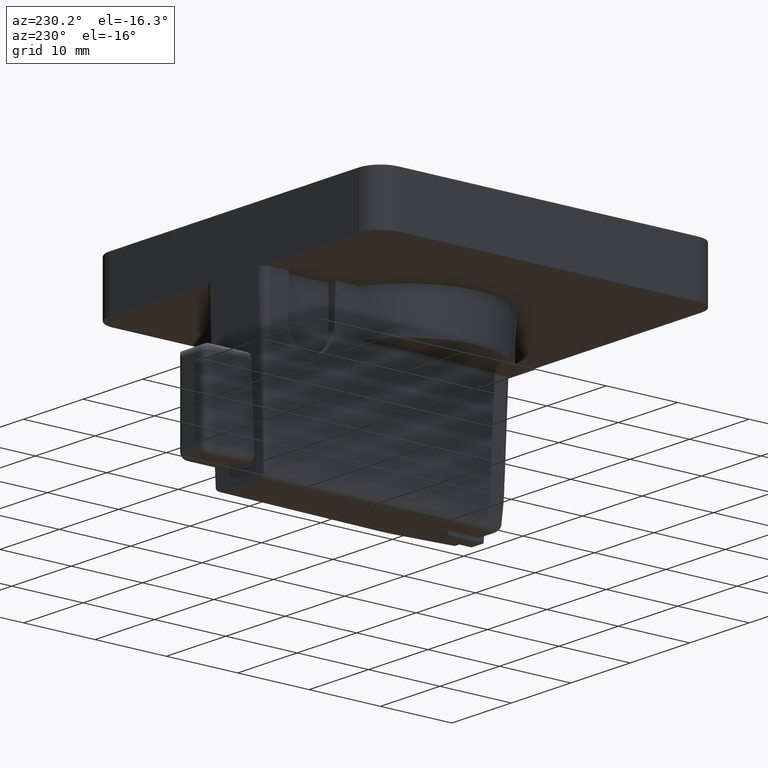
[diagram: clean part render]
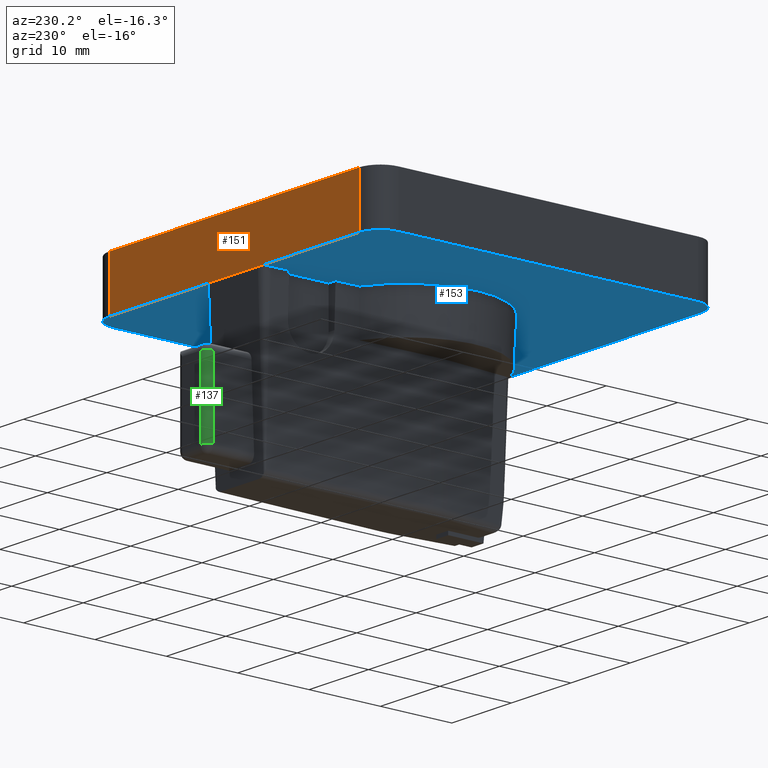
[diagram: same view with three faces highlighted in distinct colors, each labeled with its STEP entity id]
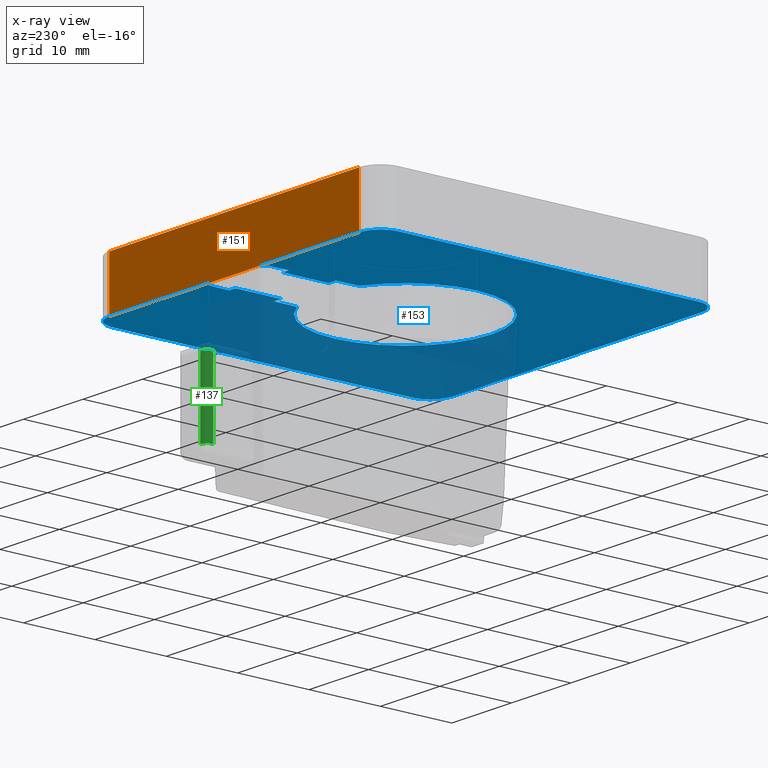
[diagram: x-ray of the same camera — body ghosted, the three highlighted faces saturated]
A machine part, auxiliary view with three faces highlighted in distinct colors.
The next image is the same camera in x-ray (body ghosted, the three faces saturated) — at least one of them is partly hidden behind the body in this view.
Their STEP definitions:

[orange] entity #151 — the highlighted planar face has unit normal (0, 1, 0).
#80=PLANE('',#1266);
#151=ADVANCED_FACE('',(#236),#80,.T.);
#236=FACE_OUTER_BOUND('',#300,.T.);
#300=EDGE_LOOP('',(#641,#642,#643,#644,#645,#646));
#641=ORIENTED_EDGE('',*,*,#952,.T.);
#642=ORIENTED_EDGE('',*,*,#953,.T.);
#643=ORIENTED_EDGE('',*,*,#954,.F.);
#644=ORIENTED_EDGE('',*,*,#885,.T.);
#645=ORIENTED_EDGE('',*,*,#955,.F.);
#646=ORIENTED_EDGE('',*,*,#956,.T.);
#753=VERTEX_POINT('',#1812);
#762=VERTEX_POINT('',#1832);
#796=VERTEX_POINT('',#2021);
#797=VERTEX_POINT('',#2022);
#798=VERTEX_POINT('',#2024);
#799=VERTEX_POINT('',#2027);
#885=EDGE_CURVE('',#753,#762,#1013,.T.);
#952=EDGE_CURVE('',#796,#797,#1060,.T.);
#953=EDGE_CURVE('',#797,#798,#1061,.T.);
#954=EDGE_CURVE('',#753,#798,#1062,.T.);
#955=EDGE_CURVE('',#799,#762,#1063,.T.);
#956=EDGE_CURVE('',#799,#796,#1064,.T.);
#1013=LINE('',#1833,#1111);
#1060=LINE('',#2020,#1158);
#1061=LINE('',#2023,#1159);
#1062=LINE('',#2025,#1160);
#1063=LINE('',#2026,#1161);
#1064=LINE('',#2028,#1162);
#1111=VECTOR('',#1425,1.);
#1158=VECTOR('',#1584,1.);
#1159=VECTOR('',#1585,1.);
#1160=VECTOR('',#1586,1.);
#1161=VECTOR('',#1587,1.);
#1162=VECTOR('',#1588,1.);
#1266=AXIS2_PLACEMENT_3D('',#2029,#1589,#1590);
#1425=DIRECTION('',(-1.,0.,0.));
#1584=DIRECTION('',(1.,0.,0.));
#1585=DIRECTION('',(0.,0.,-1.));
#1586=DIRECTION('',(1.,0.,0.));
#1587=DIRECTION('',(1.,0.,0.));
#1588=DIRECTION('',(0.,0.,1.));
#1589=DIRECTION('',(0.,1.,0.));
#1590=DIRECTION('',(0.,0.,1.));
#1812=CARTESIAN_POINT('',(-157.024008586284,-217.,0.));
#1832=CARTESIAN_POINT('',(-164.975991413717,-217.,0.));
#1833=CARTESIAN_POINT('',(-152.000000000001,-217.,-3.41060513164848E-013));
#2020=CARTESIAN_POINT('',(-185.,-217.,7.3));
#2021=CARTESIAN_POINT('',(-182.,-217.,7.3));
#2022=CARTESIAN_POINT('',(-140.,-217.,7.3));
#2023=CARTESIAN_POINT('',(-140.,-217.,7.3));
#2024=CARTESIAN_POINT('',(-140.,-217.,0.));
#2025=CARTESIAN_POINT('',(-185.,-217.,0.));
#2026=CARTESIAN_POINT('',(-185.,-217.,0.));
#2027=CARTESIAN_POINT('',(-182.,-217.,0.));
#2028=CARTESIAN_POINT('',(-182.,-217.,7.3));
#2029=CARTESIAN_POINT('',(-185.,-217.,7.3));

[blue] entity #153 — the highlighted planar face has unit normal (0, 0, -1).
#82=PLANE('',#1277);
#153=ADVANCED_FACE('',(#237),#82,.T.);
#237=FACE_OUTER_BOUND('',#303,.T.);
#303=EDGE_LOOP('',(#656,#657,#658,#659,#660,#661,#662,#663,#664,#665,#666,
#667,#668,#669,#670,#671,#672,#673,#674,#675,#676,#677));
#315=CIRCLE('',#1175,12.);
#325=CIRCLE('',#1204,1.);
#327=CIRCLE('',#1212,1.);
#347=CIRCLE('',#1273,3.);
#348=CIRCLE('',#1274,3.);
#349=CIRCLE('',#1275,3.);
#350=CIRCLE('',#1276,3.);
#656=ORIENTED_EDGE('',*,*,#809,.T.);
#657=ORIENTED_EDGE('',*,*,#875,.T.);
#658=ORIENTED_EDGE('',*,*,#954,.T.);
#659=ORIENTED_EDGE('',*,*,#962,.T.);
#660=ORIENTED_EDGE('',*,*,#940,.T.);
#661=ORIENTED_EDGE('',*,*,#963,.T.);
#662=ORIENTED_EDGE('',*,*,#944,.T.);
#663=ORIENTED_EDGE('',*,*,#964,.T.);
#664=ORIENTED_EDGE('',*,*,#948,.T.);
#665=ORIENTED_EDGE('',*,*,#965,.T.);
#666=ORIENTED_EDGE('',*,*,#955,.T.);
#667=ORIENTED_EDGE('',*,*,#888,.T.);
#668=ORIENTED_EDGE('',*,*,#825,.T.);
#669=ORIENTED_EDGE('',*,*,#895,.F.);
#670=ORIENTED_EDGE('',*,*,#896,.T.);
#671=ORIENTED_EDGE('',*,*,#889,.T.);
#672=ORIENTED_EDGE('',*,*,#821,.T.);
#673=ORIENTED_EDGE('',*,*,#830,.T.);
#674=ORIENTED_EDGE('',*,*,#813,.T.);
#675=ORIENTED_EDGE('',*,*,#899,.T.);
#676=ORIENTED_EDGE('',*,*,#904,.F.);
#677=ORIENTED_EDGE('',*,*,#902,.F.);
#704=VERTEX_POINT('',#1646);
#705=VERTEX_POINT('',#1648);
#708=VERTEX_POINT('',#1654);
#709=VERTEX_POINT('',#1656);
#712=VERTEX_POINT('',#1666);
#716=VERTEX_POINT('',#1680);
#717=VERTEX_POINT('',#1682);
#720=VERTEX_POINT('',#1688);
#753=VERTEX_POINT('',#1812);
#762=VERTEX_POINT('',#1832);
#763=VERTEX_POINT('',#1852);
#766=VERTEX_POINT('',#1862);
#768=VERTEX_POINT('',#1870);
#770=VERTEX_POINT('',#1878);
#784=VERTEX_POINT('',#1994);
#785=VERTEX_POINT('',#1995);
#788=VERTEX_POINT('',#2003);
#789=VERTEX_POINT('',#2004);
#792=VERTEX_POINT('',#2012);
#793=VERTEX_POINT('',#2013);
#798=VERTEX_POINT('',#2024);
#799=VERTEX_POINT('',#2027);
#809=EDGE_CURVE('',#705,#704,#971,.T.);
#813=EDGE_CURVE('',#709,#708,#974,.T.);
#821=EDGE_CURVE('',#717,#716,#979,.T.);
#825=EDGE_CURVE('',#712,#720,#982,.T.);
#830=EDGE_CURVE('',#716,#709,#315,.T.);
#875=EDGE_CURVE('',#704,#753,#325,.T.);
#888=EDGE_CURVE('',#762,#712,#327,.T.);
#889=EDGE_CURVE('',#763,#717,#1014,.T.);
#895=EDGE_CURVE('',#766,#720,#1019,.T.);
#896=EDGE_CURVE('',#766,#763,#1020,.T.);
#899=EDGE_CURVE('',#708,#768,#1023,.T.);
#902=EDGE_CURVE('',#705,#770,#1025,.T.);
#904=EDGE_CURVE('',#770,#768,#1027,.T.);
#940=EDGE_CURVE('',#784,#785,#1048,.T.);
#944=EDGE_CURVE('',#788,#789,#1052,.T.);
#948=EDGE_CURVE('',#792,#793,#1056,.T.);
#954=EDGE_CURVE('',#753,#798,#1062,.T.);
#955=EDGE_CURVE('',#799,#762,#1063,.T.);
#962=EDGE_CURVE('',#798,#784,#347,.T.);
#963=EDGE_CURVE('',#785,#788,#348,.T.);
#964=EDGE_CURVE('',#789,#792,#349,.T.);
#965=EDGE_CURVE('',#793,#799,#350,.T.);
#971=LINE('',#1647,#1069);
#974=LINE('',#1655,#1072);
#979=LINE('',#1681,#1077);
#982=LINE('',#1689,#1080);
#1014=LINE('',#1851,#1112);
#1019=LINE('',#1863,#1117);
#1020=LINE('',#1865,#1118);
#1023=LINE('',#1871,#1121);
#1025=LINE('',#1877,#1123);
#1027=LINE('',#1881,#1125);
#1048=LINE('',#1993,#1146);
#1052=LINE('',#2002,#1150);
#1056=LINE('',#2011,#1154);
#1062=LINE('',#2025,#1160);
#1063=LINE('',#2026,#1161);
#1069=VECTOR('',#1297,1.);
#1072=VECTOR('',#1302,1.);
#1077=VECTOR('',#1309,1.);
#1080=VECTOR('',#1314,1.);
#1112=VECTOR('',#1434,1.);
#1117=VECTOR('',#1445,1.);
#1118=VECTOR('',#1448,1.);
#1121=VECTOR('',#1453,1.);
#1123=VECTOR('',#1461,1.);
#1125=VECTOR('',#1465,1.);
#1146=VECTOR('',#1566,1.);
#1150=VECTOR('',#1572,1.);
#1154=VECTOR('',#1578,1.);
#1160=VECTOR('',#1586,1.);
#1161=VECTOR('',#1587,1.);
#1175=AXIS2_PLACEMENT_3D('',#1699,#1326,#1327);
#1204=AXIS2_PLACEMENT_3D('',#1813,#1408,#1409);
#1212=AXIS2_PLACEMENT_3D('',#1849,#1430,#1431);
#1273=AXIS2_PLACEMENT_3D('',#2037,#1603,#1604);
#1274=AXIS2_PLACEMENT_3D('',#2038,#1605,#1606);
#1275=AXIS2_PLACEMENT_3D('',#2039,#1607,#1608);
#1276=AXIS2_PLACEMENT_3D('',#2040,#1609,#1610);
#1277=AXIS2_PLACEMENT_3D('',#2041,#1611,#1612);
#1297=DIRECTION('',(-0.0225112854410328,0.999746588905305,0.));
#1302=DIRECTION('',(-0.0225112854410328,0.999746588905305,0.));
#1309=DIRECTION('',(-0.0225112854410328,-0.999746588905305,0.));
#1314=DIRECTION('',(-0.0225112854410328,-0.999746588905305,0.));
#1326=DIRECTION('',(0.,0.,1.));
#1327=DIRECTION('',(1.,0.,0.));
#1408=DIRECTION('',(0.,0.,1.));
#1409=DIRECTION('',(1.,0.,0.));
#1430=DIRECTION('',(0.,0.,1.));
#1431=DIRECTION('',(1.,0.,0.));
#1434=DIRECTION('',(-1.,0.,0.));
#1445=DIRECTION('',(-1.,0.,0.));
#1448=DIRECTION('',(0.,-1.,0.));
#1453=DIRECTION('',(-1.,0.,0.));
#1461=DIRECTION('',(-1.,0.,0.));
#1465=DIRECTION('',(0.,-1.,0.));
#1566=DIRECTION('',(1.15648231731787E-015,-1.,0.));
#1572=DIRECTION('',(-1.,0.,0.));
#1578=DIRECTION('',(0.,1.,0.));
#1586=DIRECTION('',(1.,0.,0.));
#1587=DIRECTION('',(1.,0.,0.));
#1603=DIRECTION('',(0.,0.,-1.));
#1604=DIRECTION('',(-1.,0.,0.));
#1605=DIRECTION('',(0.,0.,-1.));
#1606=DIRECTION('',(-1.,0.,0.));
#1607=DIRECTION('',(0.,0.,-1.));
#1608=DIRECTION('',(-1.,0.,0.));
#1609=DIRECTION('',(0.,0.,-1.));
#1610=DIRECTION('',(-1.,0.,0.));
#1611=DIRECTION('',(0.,0.,-1.));
#1612=DIRECTION('',(-1.,0.,0.));
#1646=CARTESIAN_POINT('',(-156.024261997378,-217.977488714559,0.));
#1647=CARTESIAN_POINT('',(-155.536108644719,-239.656821530213,0.));
#1648=CARTESIAN_POINT('',(-155.967462632214,-220.5,-3.39870276019894E-013));
#1654=CARTESIAN_POINT('',(-155.823353886637,-226.9,-3.40871123374106E-013));
#1655=CARTESIAN_POINT('',(-155.536108644719,-239.656821530213,0.));
#1656=CARTESIAN_POINT('',(-155.748823738146,-230.209951442791,0.));
#1666=CARTESIAN_POINT('',(-165.975738002622,-217.977488714559,0.));
#1680=CARTESIAN_POINT('',(-166.251176261855,-230.209951442791,0.));
#1681=CARTESIAN_POINT('',(-165.975738002622,-217.977488714559,0.));
#1682=CARTESIAN_POINT('',(-166.176646113363,-226.9,-3.40985896338459E-013));
#1688=CARTESIAN_POINT('',(-166.032537367786,-220.5,-1.8655900663276E-016));
#1689=CARTESIAN_POINT('',(-165.975738002622,-217.977488714559,0.));
#1699=CARTESIAN_POINT('',(-161.,-241.,0.));
#1812=CARTESIAN_POINT('',(-157.024008586284,-217.,0.));
#1813=CARTESIAN_POINT('',(-157.024008586284,-218.,0.));
#1832=CARTESIAN_POINT('',(-164.975991413717,-217.,0.));
#1849=CARTESIAN_POINT('',(-164.975991413716,-218.,0.));
#1851=CARTESIAN_POINT('',(-165.000000000001,-226.9,-3.41060513164848E-013));
#1852=CARTESIAN_POINT('',(-165.000000000001,-226.9,-3.41060513164848E-013));
#1862=CARTESIAN_POINT('',(-165.000000000001,-220.5,-3.40873163029443E-013));
#1863=CARTESIAN_POINT('',(-165.000000000001,-220.5,-3.40873163029443E-013));
#1865=CARTESIAN_POINT('',(-165.000000000001,-220.5,-3.41060513164848E-013));
#1870=CARTESIAN_POINT('',(-157.000000000001,-226.9,-3.41060513164848E-013));
#1871=CARTESIAN_POINT('',(-147.000000000001,-226.9,-3.41060513164848E-013));
#1877=CARTESIAN_POINT('',(-147.000000000001,-220.5,-3.40005801291454E-013));
#1878=CARTESIAN_POINT('',(-157.000000000001,-220.5,-3.40005801291454E-013));
#1881=CARTESIAN_POINT('',(-157.000000000001,-220.5,-3.41060513164848E-013));
#1993=CARTESIAN_POINT('',(-137.,-217.,0.));
#1994=CARTESIAN_POINT('',(-137.,-220.,0.));
#1995=CARTESIAN_POINT('',(-137.,-262.,0.));
#2002=CARTESIAN_POINT('',(-137.,-265.,0.));
#2003=CARTESIAN_POINT('',(-140.,-265.,0.));
#2004=CARTESIAN_POINT('',(-182.,-265.,0.));
#2011=CARTESIAN_POINT('',(-185.,-265.,0.));
#2012=CARTESIAN_POINT('',(-185.,-262.,0.));
#2013=CARTESIAN_POINT('',(-185.,-220.,0.));
#2024=CARTESIAN_POINT('',(-140.,-217.,0.));
#2025=CARTESIAN_POINT('',(-185.,-217.,0.));
#2026=CARTESIAN_POINT('',(-185.,-217.,0.));
#2027=CARTESIAN_POINT('',(-182.,-217.,0.));
#2037=CARTESIAN_POINT('',(-140.,-220.,0.));
#2038=CARTESIAN_POINT('',(-140.,-262.,0.));
#2039=CARTESIAN_POINT('',(-182.,-262.,0.));
#2040=CARTESIAN_POINT('',(-182.,-220.,0.));
#2041=CARTESIAN_POINT('',(0.,0.,0.));

[green] entity #137 — the highlighted cylindrical surface (edge-blend (fillet) strip) has radius 1 mm, axis along (0, 0, -1).
#137=ADVANCED_FACE('',(#222),#169,.T.);
#169=CYLINDRICAL_SURFACE('',#1247,1.);
#222=FACE_OUTER_BOUND('',#286,.T.);
#286=EDGE_LOOP('',(#581,#582,#583,#584));
#334=CIRCLE('',#1240,1.);
#337=CIRCLE('',#1246,1.);
#581=ORIENTED_EDGE('',*,*,#929,.T.);
#582=ORIENTED_EDGE('',*,*,#921,.F.);
#583=ORIENTED_EDGE('',*,*,#932,.F.);
#584=ORIENTED_EDGE('',*,*,#913,.F.);
#775=VERTEX_POINT('',#1901);
#776=VERTEX_POINT('',#1902);
#781=VERTEX_POINT('',#1916);
#782=VERTEX_POINT('',#1918);
#913=EDGE_CURVE('',#775,#776,#1036,.T.);
#921=EDGE_CURVE('',#781,#782,#1044,.T.);
#929=EDGE_CURVE('',#775,#782,#334,.T.);
#932=EDGE_CURVE('',#776,#781,#337,.T.);
#1036=LINE('',#1900,#1134);
#1044=LINE('',#1917,#1142);
#1134=VECTOR('',#1486,1.);
#1142=VECTOR('',#1498,1.);
#1240=AXIS2_PLACEMENT_3D('',#1932,#1520,#1521);
#1246=AXIS2_PLACEMENT_3D('',#1938,#1532,#1533);
#1247=AXIS2_PLACEMENT_3D('',#1939,#1534,#1535);
#1486=DIRECTION('',(0.,0.,1.));
#1498=DIRECTION('',(0.,0.,-1.));
#1520=DIRECTION('',(0.,0.,1.));
#1521=DIRECTION('',(1.,0.,0.));
#1532=DIRECTION('',(0.,0.,1.));
#1533=DIRECTION('',(-1.,0.,0.));
#1534=DIRECTION('',(0.,0.,-1.));
#1535=DIRECTION('',(1.,0.,0.));
#1900=CARTESIAN_POINT('',(-162.500000000001,-211.,-21.5000000000003));
#1901=CARTESIAN_POINT('',(-162.500000000001,-211.,-20.5000000000003));
#1902=CARTESIAN_POINT('',(-162.500000000001,-211.,-10.0000000000003));
#1916=CARTESIAN_POINT('',(-163.500000000001,-212.,-10.0000000000003));
#1917=CARTESIAN_POINT('',(-163.500000000001,-212.,-21.5000000000003));
#1918=CARTESIAN_POINT('',(-163.500000000001,-212.,-20.5000000000003));
#1932=CARTESIAN_POINT('',(-162.500000000001,-212.,-20.5000000000003));
#1938=CARTESIAN_POINT('',(-162.500000000001,-212.,-10.0000000000003));
#1939=CARTESIAN_POINT('',(-162.500000000001,-212.,-21.5000000000003));